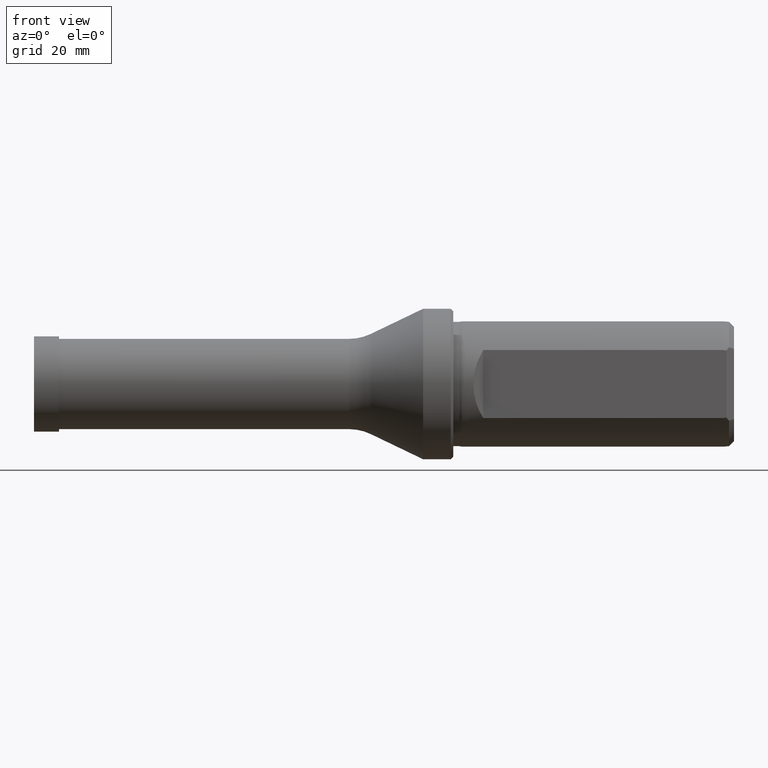
[diagram: clean part render]
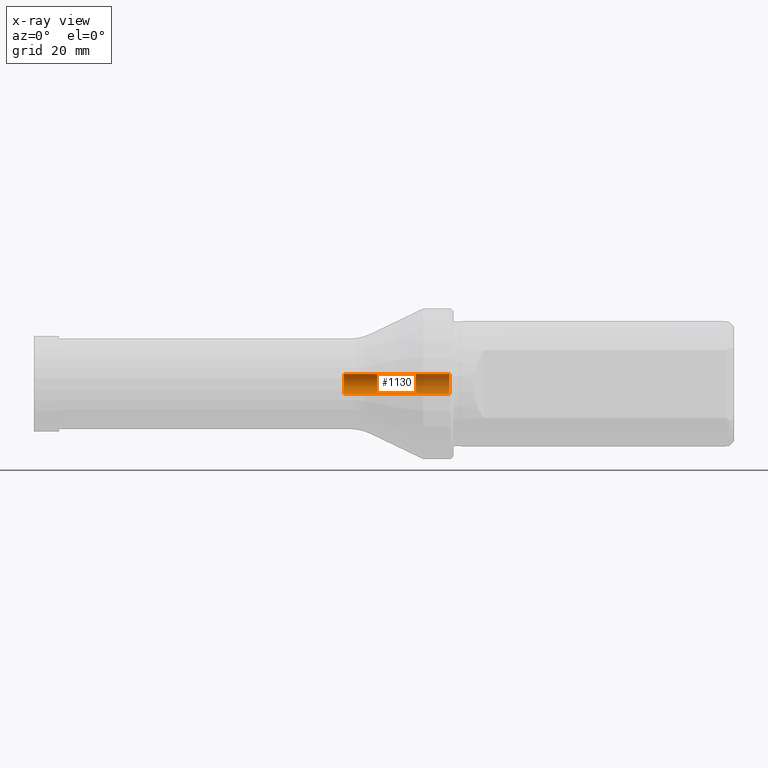
[diagram: x-ray — body ghosted, one internal face saturated and labeled with its STEP entity id]
A machine part, front view, then the same camera in x-ray: the body is ghosted and one INTERNAL B-rep face — a face not visible from any outside direction — is saturated and labeled: STEP entity #1130.
In plain terms, the highlighted cylindrical surface (edge-blend (fillet) strip) has radius 2 mm, axis along (-1, -0, -0).
Its self-contained STEP definition (entity closure, byte-faithful):
#17 = CARTESIAN_POINT ( 'NONE',  ( 61.30172123805512300, 0.0000000000000000000, -2.000000000000002200 ) ) ;
#22 = CARTESIAN_POINT ( 'NONE',  ( 82.34892422621554400, 0.0000000000000000000, 2.000000000000000000 ) ) ;
#55 = ORIENTED_EDGE ( 'NONE', *, *, #324, .T. ) ;
#73 = ORIENTED_EDGE ( 'NONE', *, *, #531, .T. ) ;
#76 = ORIENTED_EDGE ( 'NONE', *, *, #505, .F. ) ;
#79 = ORIENTED_EDGE ( 'NONE', *, *, #478, .F. ) ;
#127 = CARTESIAN_POINT ( 'NONE',  ( 0.0000000000000000000, 2.449293598294708400E-016, -2.000000000000001300 ) ) ;
#137 = AXIS2_PLACEMENT_3D ( 'NONE', #1073, #251, #1022 ) ;
#251 = DIRECTION ( 'NONE',  ( -1.000000000000000000, -0.0000000000000000000, -0.0000000000000000000 ) ) ;
#274 = AXIS2_PLACEMENT_3D ( 'NONE', #1216, #1063, #855 ) ;
#324 = EDGE_CURVE ( 'NONE', #1034, #676, #1209, .T. ) ;
#355 = CARTESIAN_POINT ( 'NONE',  ( 82.34892422621554400, 2.449293598294707400E-016, -2.000000000000000000 ) ) ;
#410 = EDGE_LOOP ( 'NONE', ( #79, #76, #73, #55 ) ) ;
#432 = CARTESIAN_POINT ( 'NONE',  ( 61.30172123805512300, 0.0000000000000000000, 0.0000000000000000000 ) ) ;
#438 = DIRECTION ( 'NONE',  ( -1.000000000000000000, -0.0000000000000000000, -0.0000000000000000000 ) ) ;
#478 = EDGE_CURVE ( 'NONE', #868, #676, #534, .T. ) ;
#498 = CYLINDRICAL_SURFACE ( 'NONE', #137, 2.000000000000001300 ) ;
#505 = EDGE_CURVE ( 'NONE', #935, #868, #1091, .T. ) ;
#531 = EDGE_CURVE ( 'NONE', #935, #1034, #863, .T. ) ;
#534 = LINE ( 'NONE', #127, #967 ) ;
#556 = DIRECTION ( 'NONE',  ( -1.000000000000000000, -0.0000000000000000000, -0.0000000000000000000 ) ) ;
#567 = CARTESIAN_POINT ( 'NONE',  ( 61.30172123805512300, 2.449293598294708900E-016, 2.000000000000002200 ) ) ;
#626 = FACE_OUTER_BOUND ( 'NONE', #410, .T. ) ;
#676 = VERTEX_POINT ( 'NONE', #17 ) ;
#777 = CARTESIAN_POINT ( 'NONE',  ( 0.0000000000000000000, 0.0000000000000000000, 2.000000000000001300 ) ) ;
#855 = DIRECTION ( 'NONE',  ( 0.0000000000000000000, 0.0000000000000000000, 1.000000000000000000 ) ) ;
#863 = LINE ( 'NONE', #777, #995 ) ;
#868 = VERTEX_POINT ( 'NONE', #355 ) ;
#926 = DIRECTION ( 'NONE',  ( 0.0000000000000000000, 0.0000000000000000000, 1.000000000000000000 ) ) ;
#933 = AXIS2_PLACEMENT_3D ( 'NONE', #432, #943, #926 ) ;
#935 = VERTEX_POINT ( 'NONE', #22 ) ;
#943 = DIRECTION ( 'NONE',  ( -1.000000000000000000, -0.0000000000000000000, -0.0000000000000000000 ) ) ;
#967 = VECTOR ( 'NONE', #556, 1000.000000000000000 ) ;
#995 = VECTOR ( 'NONE', #438, 1000.000000000000000 ) ;
#1022 = DIRECTION ( 'NONE',  ( 0.0000000000000000000, 0.0000000000000000000, 1.000000000000000000 ) ) ;
#1034 = VERTEX_POINT ( 'NONE', #567 ) ;
#1063 = DIRECTION ( 'NONE',  ( -1.000000000000000000, -0.0000000000000000000, -0.0000000000000000000 ) ) ;
#1073 = CARTESIAN_POINT ( 'NONE',  ( 0.0000000000000000000, 0.0000000000000000000, 0.0000000000000000000 ) ) ;
#1091 = CIRCLE ( 'NONE', #274, 2.000000000000000000 ) ;
#1130 = ADVANCED_FACE ( 'NONE', ( #626 ), #498, .F. ) ;
#1209 = CIRCLE ( 'NONE', #933, 2.000000000000002700 ) ;
#1216 = CARTESIAN_POINT ( 'NONE',  ( 82.34892422621554400, 0.0000000000000000000, 0.0000000000000000000 ) ) ;